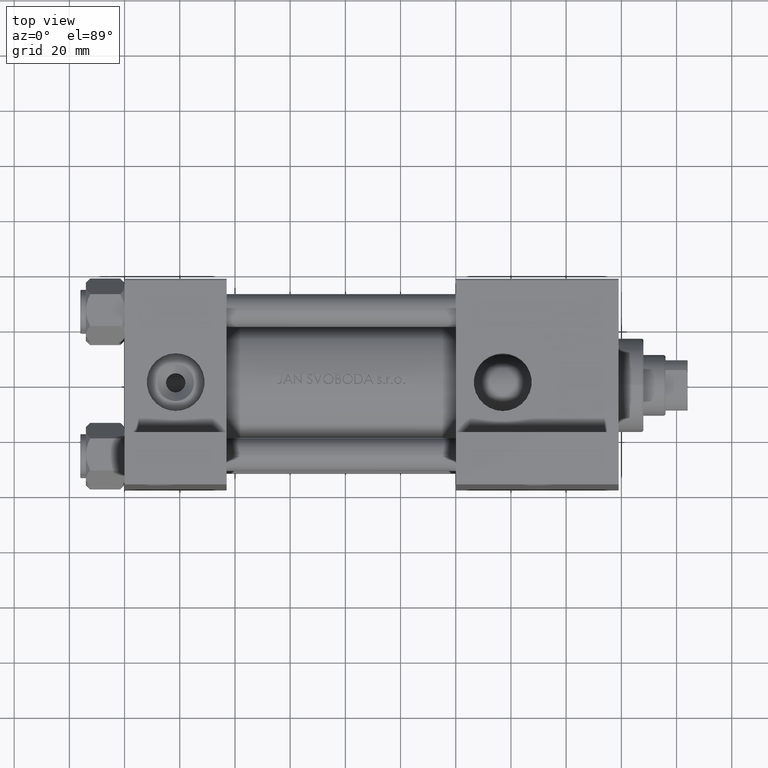
[diagram: clean part render]
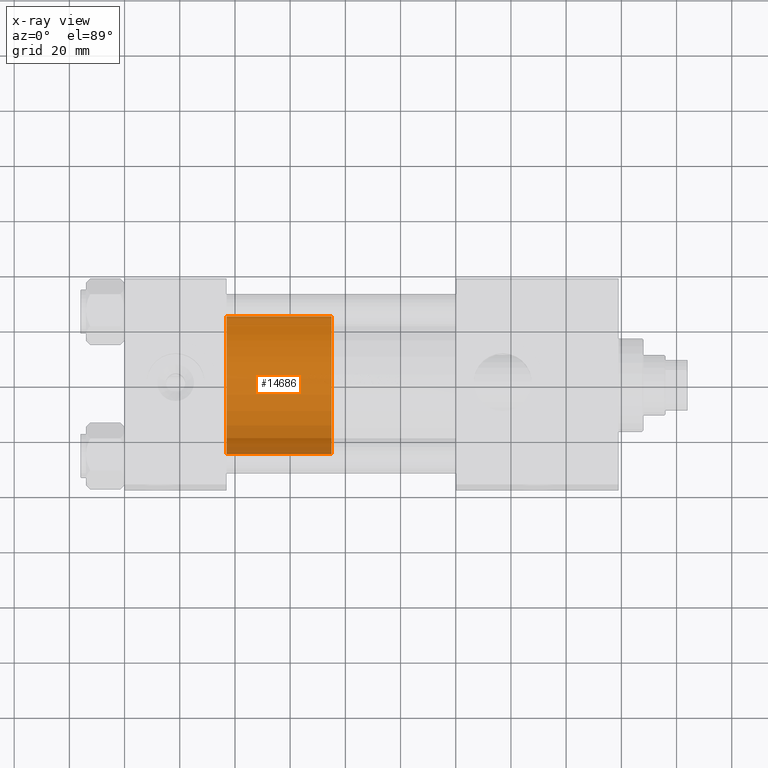
[diagram: x-ray — body ghosted, one internal face saturated and labeled with its STEP entity id]
A machine part, top view, then the same camera in x-ray: the body is ghosted and one INTERNAL B-rep face — a face not visible from any outside direction — is saturated and labeled: STEP entity #14686.
In plain terms, the highlighted cylindrical surface (partial cylindrical patch) has radius 25 mm, axis along (-1, 0, 0).
Its self-contained STEP definition (entity closure, byte-faithful):
#1444 = DIRECTION ( 'NONE',  ( 1.000000000000000000, 0.000000000000000000, 0.000000000000000000 ) ) ;
#1477 = VECTOR ( 'NONE', #37938, 1000.000000000000000 ) ;
#2893 = AXIS2_PLACEMENT_3D ( 'NONE', #43043, #47005, #19614 ) ;
#5675 = CARTESIAN_POINT ( 'NONE',  ( 0.000000000000000000, 0.000000000000000000, 38.00000000000000000 ) ) ;
#9294 = EDGE_CURVE ( 'NONE', #10885, #30839, #24636, .T. ) ;
#9433 = EDGE_CURVE ( 'NONE', #10885, #35667, #14620, .T. ) ;
#10885 = VERTEX_POINT ( 'NONE', #14522 ) ;
#11314 = CARTESIAN_POINT ( 'NONE',  ( -25.00000000000000000, 0.000000000000000000, 38.00000000000000000 ) ) ;
#11635 = DIRECTION ( 'NONE',  ( -0.000000000000000000, -0.000000000000000000, -1.000000000000000000 ) ) ;
#12205 = DIRECTION ( 'NONE',  ( 0.000000000000000000, 0.000000000000000000, 1.000000000000000000 ) ) ;
#12764 = VECTOR ( 'NONE', #11635, 1000.000000000000000 ) ;
#13786 = ORIENTED_EDGE ( 'NONE', *, *, #25800, .F. ) ;
#14522 = CARTESIAN_POINT ( 'NONE',  ( 25.00000000000000000, 3.061616997868383043E-15, 38.00000000000000000 ) ) ;
#14620 = LINE ( 'NONE', #38286, #12764 ) ;
#14686 = ADVANCED_FACE ( 'NONE', ( #24588 ), #39805, .T. ) ;
#16924 = ORIENTED_EDGE ( 'NONE', *, *, #20111, .T. ) ;
#19614 = DIRECTION ( 'NONE',  ( 1.000000000000000000, 0.000000000000000000, 0.000000000000000000 ) ) ;
#20111 = EDGE_CURVE ( 'NONE', #35667, #27275, #23558, .T. ) ;
#20861 = DIRECTION ( 'NONE',  ( -1.000000000000000000, 0.000000000000000000, 0.000000000000000000 ) ) ;
#23558 = CIRCLE ( 'NONE', #2893, 25.00000000000000000 ) ;
#24588 = FACE_OUTER_BOUND ( 'NONE', #29733, .T. ) ;
#24636 = CIRCLE ( 'NONE', #42949, 25.00000000000000000 ) ;
#25800 = EDGE_CURVE ( 'NONE', #30839, #27275, #26231, .T. ) ;
#26231 = LINE ( 'NONE', #11314, #1477 ) ;
#27275 = VERTEX_POINT ( 'NONE', #39144 ) ;
#29733 = EDGE_LOOP ( 'NONE', ( #34662, #36536, #16924, #13786 ) ) ;
#30156 = CARTESIAN_POINT ( 'NONE',  ( 25.00000000000000000, 3.061616997868383043E-15, 0.000000000000000000 ) ) ;
#30839 = VERTEX_POINT ( 'NONE', #46907 ) ;
#34662 = ORIENTED_EDGE ( 'NONE', *, *, #9294, .F. ) ;
#35667 = VERTEX_POINT ( 'NONE', #30156 ) ;
#36536 = ORIENTED_EDGE ( 'NONE', *, *, #9433, .T. ) ;
#37938 = DIRECTION ( 'NONE',  ( -0.000000000000000000, -0.000000000000000000, -1.000000000000000000 ) ) ;
#38286 = CARTESIAN_POINT ( 'NONE',  ( 25.00000000000000000, 3.061616997868383043E-15, 38.00000000000000000 ) ) ;
#39091 = CARTESIAN_POINT ( 'NONE',  ( 0.000000000000000000, 0.000000000000000000, 38.00000000000000000 ) ) ;
#39144 = CARTESIAN_POINT ( 'NONE',  ( -25.00000000000000000, 0.000000000000000000, 0.000000000000000000 ) ) ;
#39805 = CYLINDRICAL_SURFACE ( 'NONE', #45778, 25.00000000000000000 ) ;
#42949 = AXIS2_PLACEMENT_3D ( 'NONE', #39091, #12205, #1444 ) ;
#43043 = CARTESIAN_POINT ( 'NONE',  ( 0.000000000000000000, 0.000000000000000000, 0.000000000000000000 ) ) ;
#45778 = AXIS2_PLACEMENT_3D ( 'NONE', #5675, #47746, #20861 ) ;
#46907 = CARTESIAN_POINT ( 'NONE',  ( -25.00000000000000000, 0.000000000000000000, 38.00000000000000000 ) ) ;
#47005 = DIRECTION ( 'NONE',  ( 0.000000000000000000, 0.000000000000000000, 1.000000000000000000 ) ) ;
#47746 = DIRECTION ( 'NONE',  ( -0.000000000000000000, -0.000000000000000000, -1.000000000000000000 ) ) ;